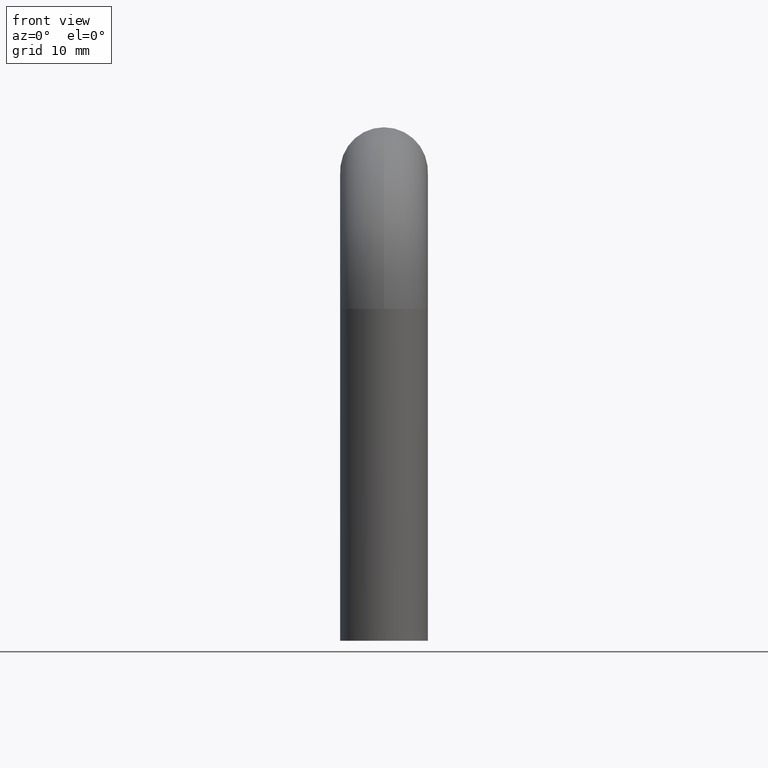
[diagram: clean part render]
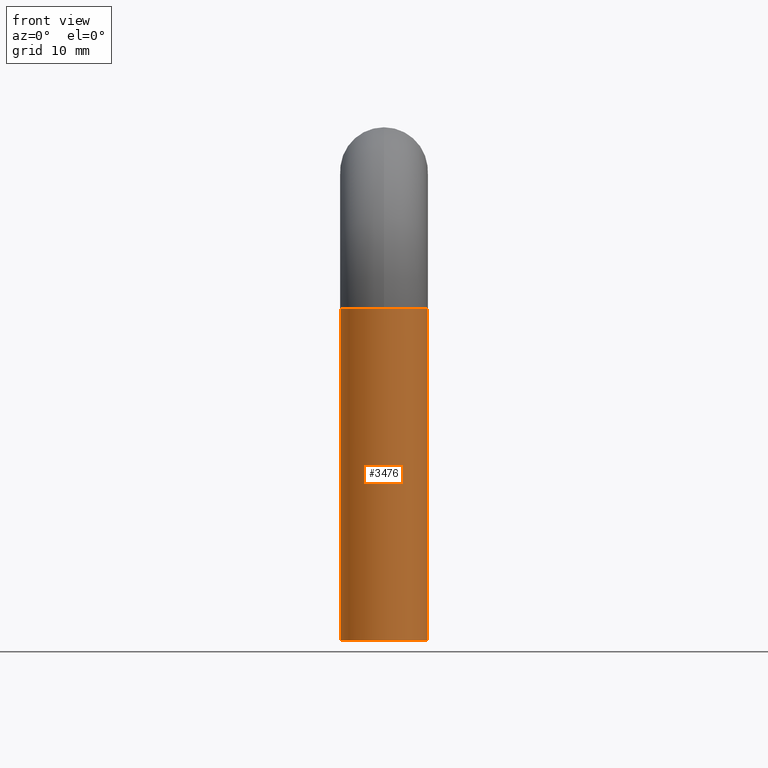
[diagram: same view with one face highlighted and labeled with its STEP entity id]
A machine part, front view. The second image highlights one B-rep face of the part: STEP entity #3476.
In plain terms, the highlighted cylindrical surface (partial cylindrical patch) has radius 7 mm, axis along (-0, -0, -1).
Its self-contained STEP definition (entity closure, byte-faithful):
#29 = ORIENTED_EDGE ( 'NONE', *, *, #12304, .F. ) ;
#91 = CARTESIAN_POINT ( 'NONE',  ( 0.000000000000000000, 0.000000000000000000, 52.99999999999983658 ) ) ;
#257 = LINE ( 'NONE', #13002, #8711 ) ;
#448 = DIRECTION ( 'NONE',  ( 1.000000000000000000, 0.000000000000000000, 0.000000000000000000 ) ) ;
#658 = ORIENTED_EDGE ( 'NONE', *, *, #10102, .F. ) ;
#1235 = DIRECTION ( 'NONE',  ( -0.000000000000000000, -0.000000000000000000, -1.000000000000000000 ) ) ;
#1307 = DIRECTION ( 'NONE',  ( 0.000000000000000000, 0.000000000000000000, 1.000000000000000000 ) ) ;
#1662 = EDGE_CURVE ( 'NONE', #12741, #3691, #9196, .T. ) ;
#2357 = CARTESIAN_POINT ( 'NONE',  ( -7.000000000000000888, 0.000000000000000000, 52.99999999999983658 ) ) ;
#2416 = CARTESIAN_POINT ( 'NONE',  ( 0.000000000000000000, 0.000000000000000000, 52.99999999999983658 ) ) ;
#2445 = CARTESIAN_POINT ( 'NONE',  ( -7.000000000000000888, 0.000000000000000000, 0.000000000000000000 ) ) ;
#2536 = DIRECTION ( 'NONE',  ( -0.000000000000000000, -0.000000000000000000, -1.000000000000000000 ) ) ;
#3476 = ADVANCED_FACE ( 'NONE', ( #6085 ), #12797, .T. ) ;
#3560 = DIRECTION ( 'NONE',  ( -0.000000000000000000, -0.000000000000000000, -1.000000000000000000 ) ) ;
#3691 = VERTEX_POINT ( 'NONE', #12158 ) ;
#3975 = EDGE_CURVE ( 'NONE', #10599, #3691, #257, .T. ) ;
#4049 = AXIS2_PLACEMENT_3D ( 'NONE', #10803, #12919, #448 ) ;
#4451 = CIRCLE ( 'NONE', #10850, 7.000000000000000888 ) ;
#5783 = CARTESIAN_POINT ( 'NONE',  ( 7.000000000000000888, 8.572527594031474176E-16, 52.99999999999983658 ) ) ;
#5837 = AXIS2_PLACEMENT_3D ( 'NONE', #91, #1235, #6459 ) ;
#6085 = FACE_OUTER_BOUND ( 'NONE', #6144, .T. ) ;
#6144 = EDGE_LOOP ( 'NONE', ( #11611, #658, #29, #13261, #13183 ) ) ;
#6459 = DIRECTION ( 'NONE',  ( -1.000000000000000000, 0.000000000000000000, 0.000000000000000000 ) ) ;
#6536 = DIRECTION ( 'NONE',  ( 1.000000000000000000, 0.000000000000000000, 0.000000000000000000 ) ) ;
#7308 = EDGE_CURVE ( 'NONE', #8505, #12741, #9650, .T. ) ;
#7879 = CARTESIAN_POINT ( 'NONE',  ( -7.000000000000000888, 0.000000000000000000, 52.99999999999983658 ) ) ;
#8242 = CARTESIAN_POINT ( 'NONE',  ( 0.000000000000000000, 0.000000000000000000, 0.000000000000000000 ) ) ;
#8505 = VERTEX_POINT ( 'NONE', #2357 ) ;
#8711 = VECTOR ( 'NONE', #3560, 1000.000000000000000 ) ;
#8982 = VECTOR ( 'NONE', #2536, 1000.000000000000000 ) ;
#9196 = CIRCLE ( 'NONE', #13083, 7.000000000000000888 ) ;
#9613 = CARTESIAN_POINT ( 'NONE',  ( 0.000000000000000000, -7.000000000000000000, 52.99999999999983658 ) ) ;
#9650 = LINE ( 'NONE', #7879, #8982 ) ;
#9999 = VERTEX_POINT ( 'NONE', #9613 ) ;
#10102 = EDGE_CURVE ( 'NONE', #9999, #10599, #4451, .T. ) ;
#10599 = VERTEX_POINT ( 'NONE', #5783 ) ;
#10803 = CARTESIAN_POINT ( 'NONE',  ( 0.000000000000000000, 0.000000000000000000, 52.99999999999983658 ) ) ;
#10850 = AXIS2_PLACEMENT_3D ( 'NONE', #2416, #1307, #6536 ) ;
#11190 = DIRECTION ( 'NONE',  ( 0.000000000000000000, 0.000000000000000000, 1.000000000000000000 ) ) ;
#11278 = DIRECTION ( 'NONE',  ( 1.000000000000000000, 0.000000000000000000, 0.000000000000000000 ) ) ;
#11453 = CIRCLE ( 'NONE', #4049, 7.000000000000000888 ) ;
#11611 = ORIENTED_EDGE ( 'NONE', *, *, #3975, .F. ) ;
#12158 = CARTESIAN_POINT ( 'NONE',  ( 7.000000000000000888, 8.572527594031474176E-16, 0.000000000000000000 ) ) ;
#12304 = EDGE_CURVE ( 'NONE', #8505, #9999, #11453, .T. ) ;
#12741 = VERTEX_POINT ( 'NONE', #2445 ) ;
#12797 = CYLINDRICAL_SURFACE ( 'NONE', #5837, 7.000000000000000888 ) ;
#12919 = DIRECTION ( 'NONE',  ( 0.000000000000000000, 0.000000000000000000, 1.000000000000000000 ) ) ;
#13002 = CARTESIAN_POINT ( 'NONE',  ( 7.000000000000000888, 8.572527594031474176E-16, 52.99999999999983658 ) ) ;
#13083 = AXIS2_PLACEMENT_3D ( 'NONE', #8242, #11190, #11278 ) ;
#13183 = ORIENTED_EDGE ( 'NONE', *, *, #1662, .T. ) ;
#13261 = ORIENTED_EDGE ( 'NONE', *, *, #7308, .T. ) ;